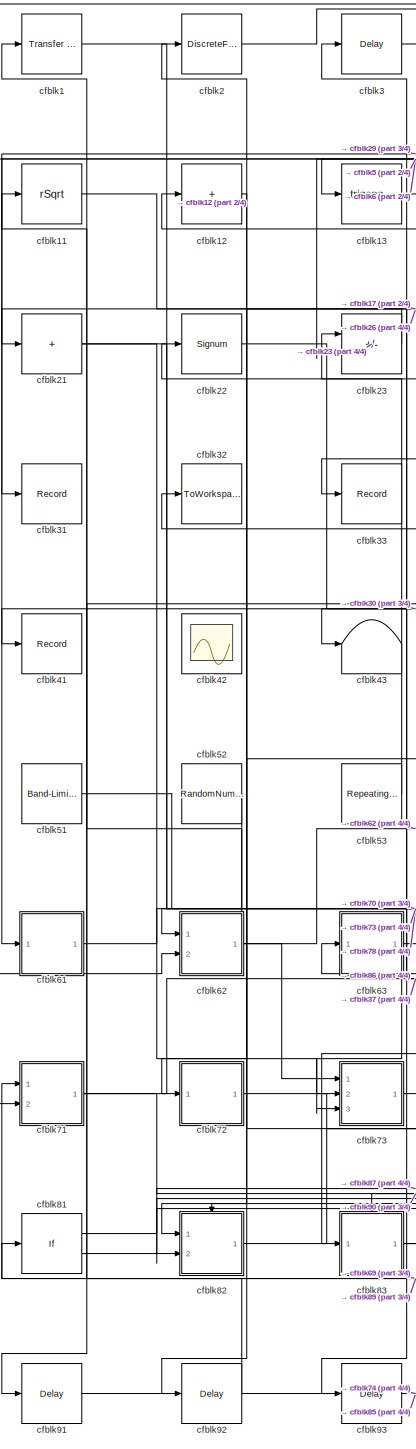
[diagram: root canvas - part 1/4, left side, full height]
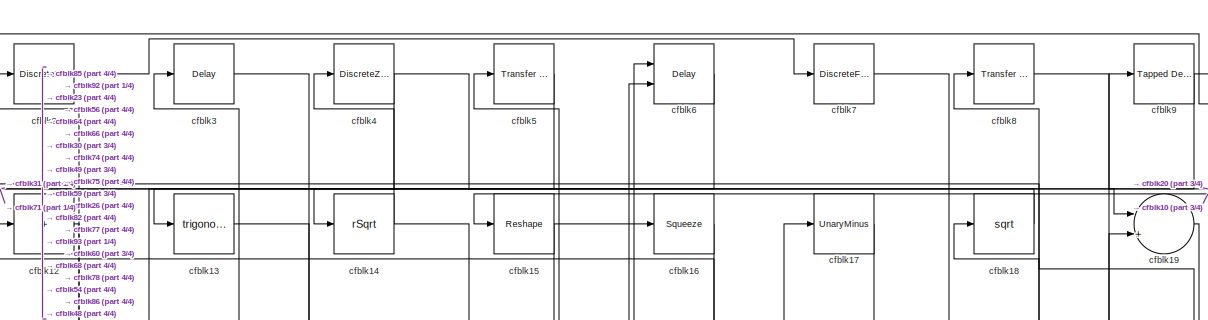
[diagram: root canvas - part 2/4, full width, top band]
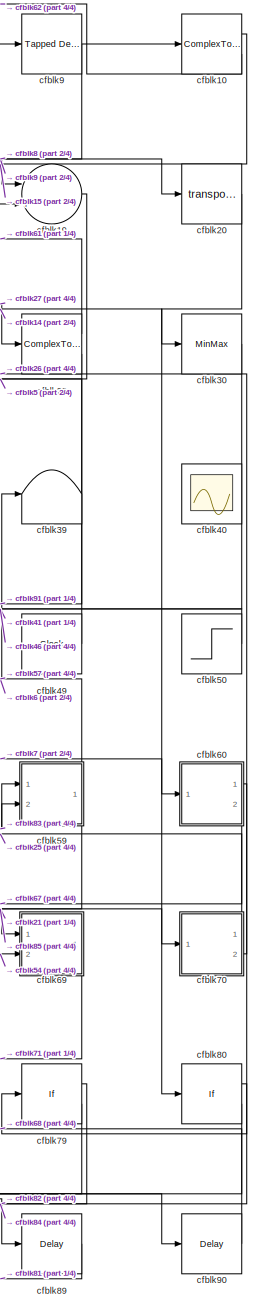
[diagram: root canvas - part 3/4, right side, full height]
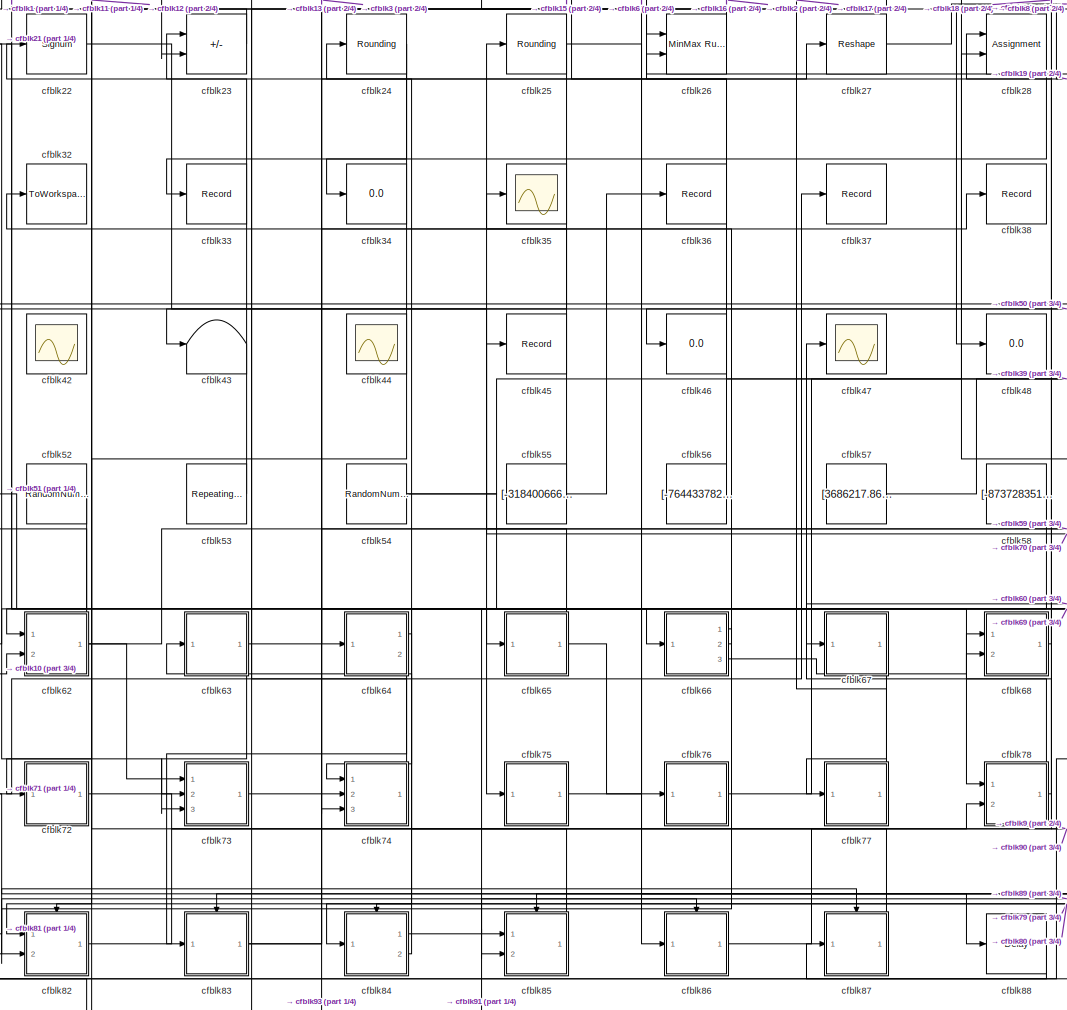
[diagram: root canvas - part 4/4, central region]
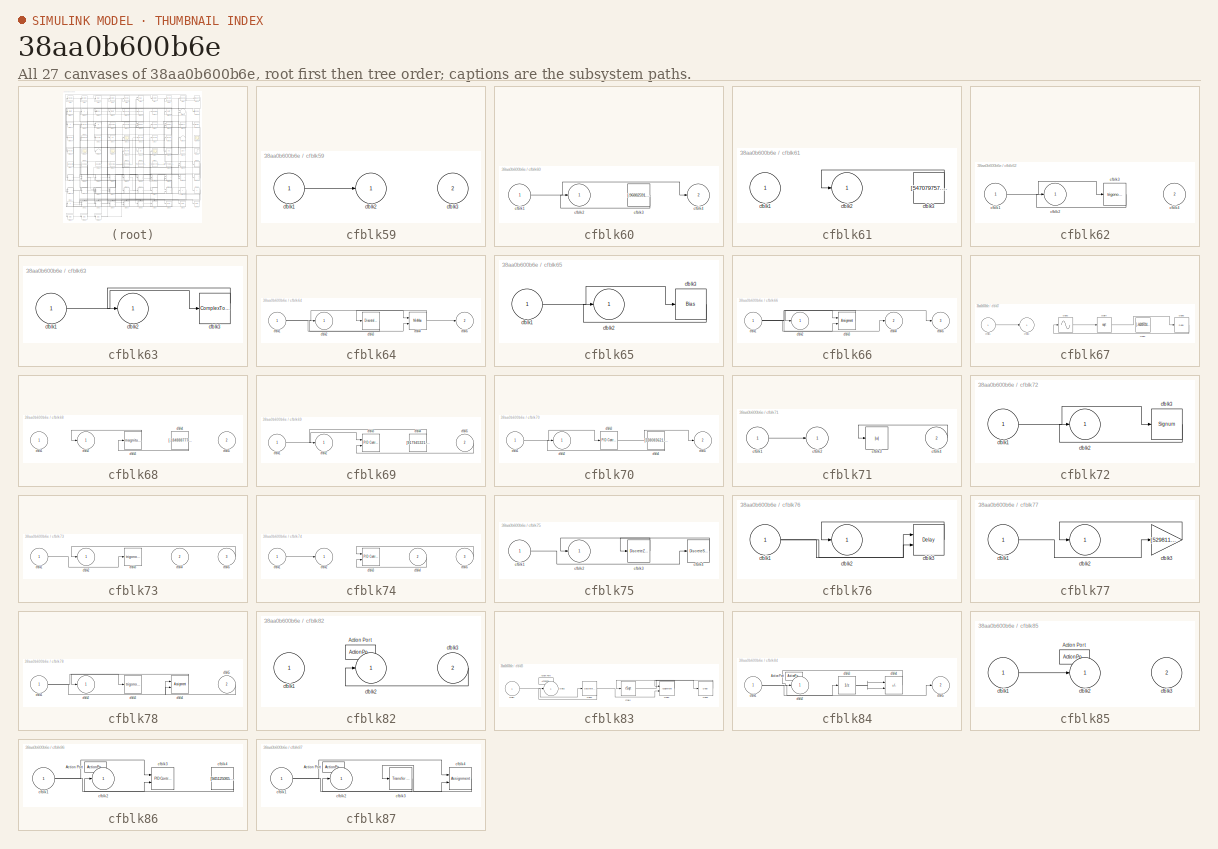
[diagram: thumbnail index - all 27 canvases of the model, root first then tree order]
MODEL slx_38aa0b600b6e
KIND model
CONFIG AbsTol = auto
CONFIG EnableMultiTasking = off
CONFIG FixedStep = auto
CONFIG MaxStep = auto
CONFIG MinStep = auto
CONFIG RelTol = 1e-3
CONFIG SampleTimeConstraint = Unconstrained
CONFIG SolverName = VariableStepAuto
CONFIG StartTime = 0.0
CONFIG StopTime = 10.0
BLOCK [Reference] cfblk1  REF=simulink/Discrete/Transfer Fcn
First Order
  Ports = [1, 1]
  SourceBlock = simulink/Discrete/Transfer Fcn\nFirst Order
  SourceProductBaseCode = SL
  SourceType = First Order Transfer Fcn
BLOCK [ComplexToRealImag] cfblk10
  Ports = [1, 2]
BLOCK [Sqrt] cfblk11
  AlgorithmType = Newton-Raphson
  Operator = rSqrt
BLOCK [Sum] cfblk12
  IconShape = rectangular
  Inputs = +
  Ports = [1, 1]
BLOCK [Trigonometry] cfblk13
  Ports = [1, 1]
BLOCK [Sqrt] cfblk14
  AlgorithmType = Newton-Raphson
  Operator = rSqrt
BLOCK [Reshape] cfblk15
  Ports = [1, 1]
BLOCK [Squeeze] cfblk16
BLOCK [UnaryMinus] cfblk17
BLOCK [Sqrt] cfblk18
BLOCK [Sum] cfblk19
  Inputs = |++
  Ports = [2, 1]
BLOCK [DiscreteFilter] cfblk2
  InputPortMap = u0
  Ports = [1, 1]
  SampleTime = 1
BLOCK [Math] cfblk20
  Operator = transpose
  Ports = [1, 1]
BLOCK [Sum] cfblk21
  IconShape = rectangular
  Inputs = +
  Ports = [1, 1]
BLOCK [Signum] cfblk22
BLOCK [Sum] cfblk23
  IconShape = rectangular
  Inputs = +-
  Ports = [2, 1]
BLOCK [Rounding] cfblk24
BLOCK [Rounding] cfblk25
BLOCK [Reference] cfblk26  REF=simulink/Math
Operations/MinMax
Running
Resettable
  Ports = [2, 1]
  SourceBlock = simulink/Math\nOperations/MinMax\nRunning\nResettable
  SourceProductBaseCode = SL
  SourceType = MinMax Running Resettable
BLOCK [Reshape] cfblk27
  Ports = [1, 1]
BLOCK [Assignment] cfblk28
  DiagnosticForDimensions = Warning
  IndexOptions = Index vector (dialog)
  Indices = 1
  OutputSizes = 1
  Ports = [2, 1]
BLOCK [ComplexToMagnitudeAngle] cfblk29
  Ports = [1, 2]
BLOCK [Delay] cfblk3
  InputPortMap = u0
  Ports = [1, 1]
  SampleTime = 1
BLOCK [MinMax] cfblk30
  Ports = [1, 1]
BLOCK [Record] cfblk31
  FileSettingsInternal = {"entries":[{"content":{"excelSettings":{"content":{},"type":"Streamout.ExcelSettings"}},"type":"Streamout.FileSettingStorage","uuid":"2c4c404d-a9d8-4ecb-ac43-eb07e88231c0"}],"packageUris":["http://schema.mathworks.com/mf0/streamout_blocks/R2020a"],"version":"1.0"}
  Ports = [1]
  SignalsInternal = {"entries":[{"content":{"signals":[{"content":{"blockPath":["sampleModel146/cfblk31"],"channel":[],"dimensions":[1],"domain":"sampleModel146/cfblk31","lineColor":"#139fff","plots":[1],"port":1,"sid":[""],"signalID":5266,"signalName":"cfblk6"},"type":"RecordBlkView.Signal","uuid":"d0bc3e79-35fc-4836-94ff-ebfbf25c3b13"}]},"type":"RecordBlkView.InputSignals","uuid":"1b88b178-e015-42b9-92ef-ac75b53b49...<+96ch>
  VisualizationBindings = {"sparklinesplugin":{"info":[{"bindingParametersList":[],"subplotID":1}]}}
BLOCK [ToWorkspace] cfblk32
  FixptAsFi = on
  MaxDataPoints = inf
  Ports = [1]
  SampleTime = -1
  SaveFormat = Timeseries
  VariableName = orayvde
BLOCK [Record] cfblk33
  FileSettingsInternal = {"entries":[{"content":{"excelSettings":{"content":{},"type":"Streamout.ExcelSettings"}},"type":"Streamout.FileSettingStorage","uuid":"65027242-5e25-4199-be77-d1365caa59eb"}],"packageUris":["http://schema.mathworks.com/mf0/streamout_blocks/R2020a"],"version":"1.0"}
  Ports = [1]
  SignalsInternal = {"entries":[{"content":{"signals":[{"content":{"blockPath":["sampleModel146/cfblk33"],"channel":[],"dimensions":[1],"domain":"sampleModel146/cfblk33","lineColor":"#ff6929","plots":[1],"port":1,"sid":[""],"signalID":5270,"signalName":"cfblk28"},"type":"RecordBlkView.Signal","uuid":"aadf2ae7-2411-4fd9-b32c-018aacf0e8a5"}]},"type":"RecordBlkView.InputSignals","uuid":"b211df41-9a1a-42a6-a715-a49f11091...<+97ch>
  VisualizationBindings = {"sparklinesplugin":{"info":[{"bindingParametersList":[],"subplotID":1}]}}
BLOCK [Display] cfblk34
  Decimation = 1
  Ports = [1]
BLOCK [Scope] cfblk35
  Floating = off
  NumInputPorts = 1
  Ports = [1]
BLOCK [Record] cfblk36
  FileSettingsInternal = {"entries":[{"content":{"excelSettings":{"content":{},"type":"Streamout.ExcelSettings"}},"type":"Streamout.FileSettingStorage","uuid":"b95e6de0-f22c-4258-afa3-2d8504a087c8"}],"packageUris":["http://schema.mathworks.com/mf0/streamout_blocks/R2020a"],"version":"1.0"}
  Ports = [1]
  SignalsInternal = {"entries":[{"content":{"signals":[{"content":{"blockPath":["sampleModel146/cfblk36"],"channel":[],"dimensions":[1],"domain":"sampleModel146/cfblk36","lineColor":"#22b573","plots":[1],"port":1,"sid":[""],"signalID":5290,"signalName":"cfblk55"},"type":"RecordBlkView.Signal","uuid":"630c3307-0b12-4d42-afc6-4e4cd5541c27"}]},"type":"RecordBlkView.InputSignals","uuid":"f5b0acc1-aa89-423a-8880-baa8e1798...<+97ch>
  VisualizationBindings = {"sparklinesplugin":{"info":[{"bindingParametersList":[],"subplotID":1}]}}
BLOCK [Record] cfblk37
  FileSettingsInternal = {"entries":[{"content":{"excelSettings":{"content":{},"type":"Streamout.ExcelSettings"}},"type":"Streamout.FileSettingStorage","uuid":"0c3041c5-4aae-4561-a3e8-a0a0da4f8121"}],"packageUris":["http://schema.mathworks.com/mf0/streamout_blocks/R2020a"],"version":"1.0"}
  Ports = [1]
  SignalsInternal = {"entries":[{"content":{"signals":[{"content":{"blockPath":["sampleModel146/cfblk37"],"channel":[],"dimensions":[1],"domain":"sampleModel146/cfblk37","lineColor":"#b746ff","plots":[1],"port":1,"sid":[""],"signalID":5274,"signalName":"cfblk71"},"type":"RecordBlkView.Signal","uuid":"452ff87b-2b57-4707-8e3e-520f57da208a"}]},"type":"RecordBlkView.InputSignals","uuid":"91810d5e-a00a-4bd2-b3b8-7506dd3a3...<+97ch>
  VisualizationBindings = {"sparklinesplugin":{"info":[{"bindingParametersList":[],"subplotID":1}]}}
BLOCK [Record] cfblk38
  FileSettingsInternal = {"entries":[{"content":{"excelSettings":{"content":{},"type":"Streamout.ExcelSettings"}},"type":"Streamout.FileSettingStorage","uuid":"1370b659-9fe1-44bb-a8e0-eb1c61a1ec34"}],"packageUris":["http://schema.mathworks.com/mf0/streamout_blocks/R2020a"],"version":"1.0"}
  Ports = [1]
  SignalsInternal = {"entries":[{"content":{"signals":[{"content":{"blockPath":["sampleModel146/cfblk38"],"channel":[],"dimensions":[1],"domain":"sampleModel146/cfblk38","lineColor":"#64d413","plots":[1],"port":1,"sid":[""],"signalID":5278,"signalName":"cfblk83"},"type":"RecordBlkView.Signal","uuid":"71d7e047-3901-47e8-824b-454d5ede9138"}]},"type":"RecordBlkView.InputSignals","uuid":"30ff83fd-6f7f-4710-9669-c62cc7ca5...<+97ch>
  VisualizationBindings = {"sparklinesplugin":{"info":[{"bindingParametersList":[],"subplotID":1}]}}
BLOCK [Terminator] cfblk39
BLOCK [DiscreteZeroPole] cfblk4
  Gain = 1
  Poles = [0 0.5]
BLOCK [Scope] cfblk40
  Floating = on
  NumInputPorts = 1
  Ports = []
BLOCK [Record] cfblk41
  FileSettingsInternal = {"entries":[{"content":{"excelSettings":{"content":{},"type":"Streamout.ExcelSettings"}},"type":"Streamout.FileSettingStorage","uuid":"e9d0085e-7b44-4280-904e-0d2ea41b6763"}],"packageUris":["http://schema.mathworks.com/mf0/streamout_blocks/R2020a"],"version":"1.0"}
  Ports = [1]
  SignalsInternal = {"entries":[{"content":{"signals":[{"content":{"blockPath":["sampleModel146/cfblk41"],"channel":[],"dimensions":[1],"domain":"sampleModel146/cfblk41","lineColor":"#ff13a6","plots":[1],"port":1,"sid":[""],"signalID":5282,"signalName":"cfblk30"},"type":"RecordBlkView.Signal","uuid":"31df9822-a114-4d34-9a51-10c9b00f2ee3"}]},"type":"RecordBlkView.InputSignals","uuid":"5b7c9c5f-bbea-4250-92c8-c644ac5b8...<+97ch>
  VisualizationBindings = {"sparklinesplugin":{"info":[{"bindingParametersList":[],"subplotID":1}]}}
BLOCK [Scope] cfblk42
  Floating = on
  NumInputPorts = 1
  Ports = []
BLOCK [Terminator] cfblk43
BLOCK [Scope] cfblk44
  Floating = on
  NumInputPorts = 1
  Ports = []
BLOCK [Record] cfblk45
  FileSettingsInternal = {"entries":[{"content":{"excelSettings":{"content":{},"type":"Streamout.ExcelSettings"}},"type":"Streamout.FileSettingStorage","uuid":"0bb6bd0b-88fb-4473-b7a6-0bbe2ad255e7"}],"packageUris":["http://schema.mathworks.com/mf0/streamout_blocks/R2020a"],"version":"1.0"}
  Ports = [1]
  SignalsInternal = {"entries":[{"content":{"signals":[{"content":{"blockPath":["sampleModel146/cfblk45"],"channel":[],"dimensions":[1],"domain":"sampleModel146/cfblk45","lineColor":"#fe330a","plots":[1],"port":1,"sid":[""],"signalID":5286,"signalName":"cfblk65"},"type":"RecordBlkView.Signal","uuid":"cd88cc68-3f2e-42c4-a163-fa1a7b8ab893"}]},"type":"RecordBlkView.InputSignals","uuid":"cd7a75ea-4808-439b-8258-22c9bf424...<+97ch>
  VisualizationBindings = {"sparklinesplugin":{"info":[{"bindingParametersList":[],"subplotID":1}]}}
BLOCK [Display] cfblk46
  Decimation = 1
  Ports = [1]
BLOCK [Scope] cfblk47
  Floating = off
  NumInputPorts = 1
  Ports = [1]
BLOCK [Display] cfblk48
  Decimation = 1
  Ports = [1]
BLOCK [Clock] cfblk49
BLOCK [Reference] cfblk5  REF=simulink/Discrete/Transfer Fcn
Real Zero
  Ports = [1, 1]
  SourceBlock = simulink/Discrete/Transfer Fcn\nReal Zero
  SourceProductBaseCode = SL
  SourceType = Transfer Fcn Real Zero
BLOCK [Step] cfblk50
  After = [798396220.249908]
  Before = [-849996061.137536]
  SampleTime = 0
  Time = [22.000000]
BLOCK [Reference] cfblk51  REF=simulink/Sources/Band-Limited
White Noise
  Ports = [0, 1]
  SourceBlock = simulink/Sources/Band-Limited\nWhite Noise
  SourceProductBaseCode = SL
  SourceType = Band-Limited White Noise.
BLOCK [RandomNumber] cfblk52
  Mean = [65950.681995]
  SampleTime = 0.1
  Seed = [824600453.000000]
  Variance = [77541.305235]
BLOCK [Reference] cfblk53  REF=simulink/Sources/Repeating
Sequence
  Ports = [0, 1]
  SourceBlock = simulink/Sources/Repeating\nSequence
  SourceProductBaseCode = SL
  SourceType = Repeating table
BLOCK [RandomNumber] cfblk54
  Mean = [34491.920561]
  SampleTime = 0.1
  Seed = [436632323.000000]
  Variance = [31983.581449]
BLOCK [Constant] cfblk55
  SampleTime = 1
  Value = [-318400666.602651]
BLOCK [Constant] cfblk56
  SampleTime = 1
  Value = [-764433782.790747]
BLOCK [Constant] cfblk57
  SampleTime = 1
  Value = [3686217.863998]
BLOCK [Constant] cfblk58
  SampleTime = 1
  Value = [-873728351.739211]
BLOCK [SubSystem] cfblk59
  Ports = [2, 1]
  RequestExecContextInheritance = off
BLOCK [Inport] cfblk59/cfblk1
BLOCK [Outport] cfblk59/cfblk2
BLOCK [Inport] cfblk59/cfblk3
  Port = 2
BLOCK [Delay] cfblk6
  DelayLengthSource = Input port
  InputPortMap = u0,p1
  Ports = [2, 1]
  SampleTime = 1
BLOCK [SubSystem] cfblk60
  Ports = [1, 2]
  RequestExecContextInheritance = off
BLOCK [Inport] cfblk60/cfblk1
BLOCK [Outport] cfblk60/cfblk2
BLOCK [Constant] cfblk60/cfblk3
  SampleTime = 1
  Value = [-96882591.848260]
BLOCK [Outport] cfblk60/cfblk4
  Port = 2
BLOCK [SubSystem] cfblk61
  Ports = [1, 1]
  RequestExecContextInheritance = off
BLOCK [Inport] cfblk61/cfblk1
BLOCK [Outport] cfblk61/cfblk2
BLOCK [Constant] cfblk61/cfblk3
  SampleTime = 1
  Value = [547079757.586182]
BLOCK [SubSystem] cfblk62
  Ports = [2, 1]
  RequestExecContextInheritance = off
BLOCK [Inport] cfblk62/cfblk1
BLOCK [Outport] cfblk62/cfblk2
BLOCK [Trigonometry] cfblk62/cfblk3
  Ports = [1, 1]
BLOCK [Inport] cfblk62/cfblk4
  Port = 2
BLOCK [SubSystem] cfblk63
  Ports = [1, 1]
  RequestExecContextInheritance = off
BLOCK [Inport] cfblk63/cfblk1
BLOCK [Outport] cfblk63/cfblk2
BLOCK [ComplexToRealImag] cfblk63/cfblk3
  Ports = [1, 2]
BLOCK [SubSystem] cfblk64
  Ports = [1, 2]
  RequestExecContextInheritance = off
BLOCK [Inport] cfblk64/cfblk1
BLOCK [Outport] cfblk64/cfblk2
BLOCK [DiscreteIntegrator] cfblk64/cfblk3
  ICPrevOutput = DiscIntNeverNeededParam
  ICPrevScaledInput = DiscIntNeverNeededParam
  InitialConditionSetting = Auto
  Ports = [1, 1]
BLOCK [MinMax] cfblk64/cfblk4
  Inputs = 2
  Ports = [2, 1]
BLOCK [Outport] cfblk64/cfblk5
  Port = 2
BLOCK [SubSystem] cfblk65
  Ports = [1, 1]
  RequestExecContextInheritance = off
BLOCK [Inport] cfblk65/cfblk1
BLOCK [Outport] cfblk65/cfblk2
BLOCK [Bias] cfblk65/cfblk3
  Bias = [-658670324.478273]
  SaturateOnIntegerOverflow = off
BLOCK [SubSystem] cfblk66
  Ports = [1, 3]
  RequestExecContextInheritance = off
BLOCK [Inport] cfblk66/cfblk1
BLOCK [Outport] cfblk66/cfblk2
BLOCK [Assignment] cfblk66/cfblk3
  DiagnosticForDimensions = Warning
  IndexOptions = Index vector (dialog)
  Indices = 1
  OutputSizes = 1
  Ports = [2, 1]
BLOCK [Outport] cfblk66/cfblk4
  Port = 2
BLOCK [Outport] cfblk66/cfblk5
  Port = 3
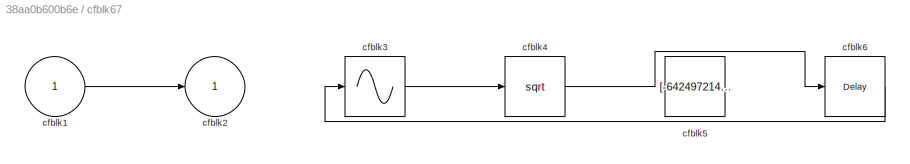
BLOCK [SubSystem] cfblk67
  Ports = [1, 1]
  RequestExecContextInheritance = off
BLOCK [Inport] cfblk67/cfblk1
BLOCK [Outport] cfblk67/cfblk2
BLOCK [Sin] cfblk67/cfblk3
  Ports = [1, 1]
  SampleTime = 0
  TimeSource = Use external signal
BLOCK [Sqrt] cfblk67/cfblk4
BLOCK [Constant] cfblk67/cfblk5
  SampleTime = 1
  Value = [-642497214.972523]
BLOCK [Delay] cfblk67/cfblk6
  InputPortMap = u0
  Ports = [1, 1]
  SampleTime = 1
BLOCK [SubSystem] cfblk68
  Ports = [2, 1]
  RequestExecContextInheritance = off
BLOCK [Inport] cfblk68/cfblk1
BLOCK [Outport] cfblk68/cfblk2
BLOCK [Math] cfblk68/cfblk3
  Operator = magnitude^2
  Ports = [1, 1]
BLOCK [Constant] cfblk68/cfblk4
  SampleTime = 1
  Value = [-184888777.157534]
BLOCK [Inport] cfblk68/cfblk5
  Port = 2
BLOCK [SubSystem] cfblk69
  Ports = [2, 1]
  RequestExecContextInheritance = off
BLOCK [Inport] cfblk69/cfblk1
BLOCK [Outport] cfblk69/cfblk2
BLOCK [Reference] cfblk69/cfblk3  REF=slpidlib/PID Controller (2DOF)
  Ports = [2, 1]
  SourceBlock = slpidlib/PID Controller (2DOF)
  SourceProductBaseCode = SL
  SourceType = PID 2dof
BLOCK [Constant] cfblk69/cfblk4
  SampleTime = 1
  Value = [917945321.597858]
BLOCK [Inport] cfblk69/cfblk5
  Port = 2
BLOCK [DiscreteFilter] cfblk7
  InputPortMap = u0
  Ports = [1, 1]
  SampleTime = 1
BLOCK [SubSystem] cfblk70
  Ports = [1, 2]
  RequestExecContextInheritance = off
BLOCK [Inport] cfblk70/cfblk1
BLOCK [Outport] cfblk70/cfblk2
BLOCK [Reference] cfblk70/cfblk3  REF=slpidlib/PID Controller
  Ports = [1, 1]
  SourceBlock = slpidlib/PID Controller
  SourceProductBaseCode = SL
  SourceType = PID 1dof
BLOCK [Constant] cfblk70/cfblk4
  SampleTime = 1
  Value = [338083621.591350]
BLOCK [Outport] cfblk70/cfblk5
  Port = 2
BLOCK [SubSystem] cfblk71
  Ports = [2, 1]
  RequestExecContextInheritance = off
BLOCK [Inport] cfblk71/cfblk1
BLOCK [Outport] cfblk71/cfblk2
BLOCK [Abs] cfblk71/cfblk3
  SaturateOnIntegerOverflow = off
BLOCK [Inport] cfblk71/cfblk4
  Port = 2
BLOCK [SubSystem] cfblk72
  Ports = [1, 1]
  RequestExecContextInheritance = off
BLOCK [Inport] cfblk72/cfblk1
BLOCK [Outport] cfblk72/cfblk2
BLOCK [Signum] cfblk72/cfblk3
BLOCK [SubSystem] cfblk73
  Ports = [3, 1]
  RequestExecContextInheritance = off
BLOCK [Inport] cfblk73/cfblk1
BLOCK [Outport] cfblk73/cfblk2
BLOCK [Trigonometry] cfblk73/cfblk3
  Ports = [1, 1]
BLOCK [Inport] cfblk73/cfblk4
  Port = 2
BLOCK [Inport] cfblk73/cfblk5
  Port = 3
BLOCK [SubSystem] cfblk74
  Ports = [3, 1]
  RequestExecContextInheritance = off
BLOCK [Inport] cfblk74/cfblk1
BLOCK [Outport] cfblk74/cfblk2
BLOCK [Reference] cfblk74/cfblk3  REF=slpidlib/PID Controller (2DOF)
  Ports = [2, 1]
  SourceBlock = slpidlib/PID Controller (2DOF)
  SourceProductBaseCode = SL
  SourceType = PID 2dof
BLOCK [Inport] cfblk74/cfblk4
  Port = 2
BLOCK [Inport] cfblk74/cfblk5
  Port = 3
BLOCK [SubSystem] cfblk75
  Ports = [1, 1]
  RequestExecContextInheritance = off
BLOCK [Inport] cfblk75/cfblk1
BLOCK [Outport] cfblk75/cfblk2
BLOCK [DiscreteZeroPole] cfblk75/cfblk3
  Gain = 1
  Poles = [0 0.5]
BLOCK [DiscreteStateSpace] cfblk75/cfblk4
BLOCK [SubSystem] cfblk76
  Ports = [1, 1]
  RequestExecContextInheritance = off
BLOCK [Inport] cfblk76/cfblk1
BLOCK [Outport] cfblk76/cfblk2
BLOCK [Delay] cfblk76/cfblk3
  InputPortMap = u0,e6
  Ports = [2, 1]
  SampleTime = 1
  ShowEnablePort = on
BLOCK [SubSystem] cfblk77
  Ports = [1, 1]
  RequestExecContextInheritance = off
BLOCK [Inport] cfblk77/cfblk1
BLOCK [Outport] cfblk77/cfblk2
BLOCK [Gain] cfblk77/cfblk3
  Gain = [529811670.708205]
BLOCK [SubSystem] cfblk78
  Ports = [2, 1]
  RequestExecContextInheritance = off
BLOCK [Inport] cfblk78/cfblk1
BLOCK [Outport] cfblk78/cfblk2
BLOCK [Trigonometry] cfblk78/cfblk3
  Ports = [1, 1]
BLOCK [Assignment] cfblk78/cfblk4
  DiagnosticForDimensions = Warning
  IndexOptions = Index vector (dialog)
  Indices = 1
  OutputSizes = 1
  Ports = [2, 1]
BLOCK [Inport] cfblk78/cfblk5
  Port = 2
BLOCK [If] cfblk79
  IfExpression = u1 >= 0
  Ports = [1, 2]
  SampleTime = 1
BLOCK [Reference] cfblk8  REF=simulink/Discrete/Transfer Fcn
First Order
  Ports = [1, 1]
  SourceBlock = simulink/Discrete/Transfer Fcn\nFirst Order
  SourceProductBaseCode = SL
  SourceType = First Order Transfer Fcn
BLOCK [If] cfblk80
  IfExpression = u1 >= 0
  Ports = [1, 2]
  SampleTime = 1
BLOCK [If] cfblk81
  IfExpression = u1 >= 0
  Ports = [1, 2]
  SampleTime = 1
BLOCK [SubSystem] cfblk82
  Ports = [2, 1, 0, 0, 0, 0, 0, 1]
  RequestExecContextInheritance = off
  TreatAsAtomicUnit = on
BLOCK [ActionPort] cfblk82/Action Port
  ActionPortLabel = if(u1 >= 0)
BLOCK [Inport] cfblk82/cfblk1
BLOCK [Outport] cfblk82/cfblk2
BLOCK [Inport] cfblk82/cfblk3
  Port = 2
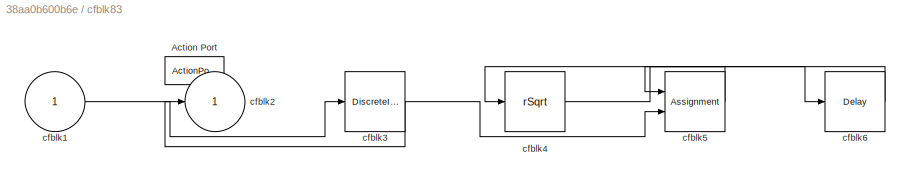
BLOCK [SubSystem] cfblk83
  Ports = [1, 1, 0, 0, 0, 0, 0, 1]
  RequestExecContextInheritance = off
  TreatAsAtomicUnit = on
BLOCK [ActionPort] cfblk83/Action Port
  ActionPortLabel = else
BLOCK [Inport] cfblk83/cfblk1
BLOCK [Outport] cfblk83/cfblk2
BLOCK [DiscreteIntegrator] cfblk83/cfblk3
  ICPrevOutput = DiscIntNeverNeededParam
  ICPrevScaledInput = DiscIntNeverNeededParam
  InitialConditionSetting = Auto
  Ports = [1, 1]
  SampleTime = -1
BLOCK [Sqrt] cfblk83/cfblk4
  AlgorithmType = Newton-Raphson
  Operator = rSqrt
BLOCK [Assignment] cfblk83/cfblk5
  DiagnosticForDimensions = Warning
  IndexOptions = Index vector (dialog)
  Indices = 1
  OutputSizes = 1
  Ports = [2, 1]
BLOCK [Delay] cfblk83/cfblk6
  InputPortMap = u0
  Ports = [1, 1]
BLOCK [SubSystem] cfblk84
  Ports = [1, 2, 0, 0, 0, 0, 0, 1]
  RequestExecContextInheritance = off
  TreatAsAtomicUnit = on
BLOCK [ActionPort] cfblk84/Action Port
  ActionPortLabel = if(u1 >= 0)
BLOCK [Inport] cfblk84/cfblk1
BLOCK [Outport] cfblk84/cfblk2
BLOCK [UnitDelay] cfblk84/cfblk3
  HasFrameUpgradeWarning = on
  SampleTime = -1
BLOCK [Sum] cfblk84/cfblk4
  IconShape = rectangular
  Inputs = +-
  Ports = [2, 1]
BLOCK [Outport] cfblk84/cfblk5
  Port = 2
BLOCK [SubSystem] cfblk85
  Ports = [2, 1, 0, 0, 0, 0, 0, 1]
  RequestExecContextInheritance = off
  TreatAsAtomicUnit = on
BLOCK [ActionPort] cfblk85/Action Port
  ActionPortLabel = else
BLOCK [Inport] cfblk85/cfblk1
BLOCK [Outport] cfblk85/cfblk2
BLOCK [Inport] cfblk85/cfblk3
  Port = 2
BLOCK [SubSystem] cfblk86
  Ports = [1, 1, 0, 0, 0, 0, 0, 1]
  RequestExecContextInheritance = off
  TreatAsAtomicUnit = on
BLOCK [ActionPort] cfblk86/Action Port
  ActionPortLabel = if(u1 >= 0)
BLOCK [Inport] cfblk86/cfblk1
BLOCK [Outport] cfblk86/cfblk2
BLOCK [Reference] cfblk86/cfblk3  REF=slpidlib/PID Controller (2DOF)
  Ports = [2, 1]
  SourceBlock = slpidlib/PID Controller (2DOF)
  SourceProductBaseCode = SL
  SourceType = PID 2dof
BLOCK [Constant] cfblk86/cfblk4
  SampleTime = 1
  Value = [945125065.003856]
BLOCK [SubSystem] cfblk87
  Ports = [1, 1, 0, 0, 0, 0, 0, 1]
  RequestExecContextInheritance = off
  TreatAsAtomicUnit = on
BLOCK [ActionPort] cfblk87/Action Port
  ActionPortLabel = else
BLOCK [Inport] cfblk87/cfblk1
BLOCK [Outport] cfblk87/cfblk2
BLOCK [Reference] cfblk87/cfblk3  REF=simulink/Discrete/Transfer Fcn
Lead or Lag
  Ports = [1, 1]
  SourceBlock = simulink/Discrete/Transfer Fcn\nLead or Lag
  SourceProductBaseCode = SL
  SourceType = Lead or Lag Compensator
BLOCK [Assignment] cfblk87/cfblk4
  DiagnosticForDimensions = Warning
  IndexOptions = Index vector (dialog)
  Indices = 1
  OutputSizes = 1
  Ports = [2, 1]
BLOCK [Delay] cfblk88
  InputPortMap = u0
  Ports = [1, 1]
  SampleTime = 1
BLOCK [Delay] cfblk89
  InputPortMap = u0
  Ports = [1, 1]
  SampleTime = 1
BLOCK [Reference] cfblk9  REF=simulink/Discrete/Tapped Delay
  Ports = [1, 1]
  SourceBlock = simulink/Discrete/Tapped Delay
  SourceProductBaseCode = SL
  SourceType = Tapped Delay Line
BLOCK [Delay] cfblk90
  InputPortMap = u0
  Ports = [1, 1]
  SampleTime = 1
BLOCK [Delay] cfblk91
  InputPortMap = u0
  Ports = [1, 1]
  SampleTime = 1
BLOCK [Delay] cfblk92
  InputPortMap = u0
  Ports = [1, 1]
  SampleTime = 1
BLOCK [Delay] cfblk93
  InputPortMap = u0
  Ports = [1, 1]
  SampleTime = 1
LINE cfblk10:1 -> cfblk15:1
LINE cfblk10:2 -> cfblk62:2
LINE cfblk11:1 -> cfblk26:1
LINE cfblk12:1 -> cfblk92:1
LINE cfblk13:1 -> cfblk66:1
NET cfblk14:1 -> cfblk30:1, cfblk4:1
NET cfblk15:1 -> cfblk16:1, cfblk74:3
LINE cfblk16:1 -> cfblk82:1
LINE cfblk17:1 -> cfblk93:1
LINE cfblk18:1 -> cfblk14:1
LINE cfblk19:1 -> cfblk48:1
LINE cfblk1:1 -> cfblk86:1
LINE cfblk20:1 -> cfblk80:1
NET cfblk21:1 -> cfblk70:1, cfblk73:3
LINE cfblk22:1 -> cfblk75:1
LINE cfblk23:1 -> cfblk21:1
NET cfblk24:1 -> cfblk34:1, cfblk72:1
NET cfblk25:1 -> cfblk43:1, cfblk88:1
LINE cfblk26:1 -> cfblk2:1
LINE cfblk27:1 -> cfblk29:1
LINE cfblk28:1 -> cfblk33:1
LINE cfblk29:1 -> cfblk61:1
LINE cfblk29:2 -> cfblk91:1
LINE cfblk2:1 -> cfblk7:1
LINE cfblk30:1 -> cfblk41:1
LINE cfblk3:1 -> cfblk64:1
LINE cfblk49:1 -> cfblk5:1
NET cfblk4:1 -> cfblk13:1, cfblk19:1
LINE cfblk50:1 -> cfblk46:1
LINE cfblk51:1 -> cfblk78:1
LINE cfblk52:1 -> cfblk62:1
LINE cfblk53:1 -> cfblk22:1
NET cfblk54:1 -> cfblk19:2, cfblk69:2
NET cfblk55:1 -> cfblk35:1, cfblk36:1
LINE cfblk56:1 -> cfblk3:1
LINE cfblk57:1 -> cfblk39:1
LINE cfblk58:1 -> cfblk84:1
LINE cfblk59/cfblk1:1 -> cfblk59/cfblk2:1
NET cfblk59:1 -> cfblk6:1, cfblk85:2
LINE cfblk5:1 -> cfblk71:2
LINE cfblk60/cfblk1:1 -> cfblk60/cfblk4:1
LINE cfblk60/cfblk3:1 -> cfblk60/cfblk2:1
LINE cfblk60:1 -> cfblk79:1
LINE cfblk60:2 -> cfblk67:1
LINE cfblk61/cfblk3:1 -> cfblk61/cfblk2:1
LINE cfblk61:1 -> cfblk69:1
LINE cfblk62/cfblk1:1 -> cfblk62/cfblk3:1
LINE cfblk62/cfblk3:1 -> cfblk62/cfblk2:1
NET cfblk62:1 -> cfblk11:1, cfblk59:2, cfblk73:1
LINE cfblk63/cfblk1:1 -> cfblk63/cfblk3:1
LINE cfblk63/cfblk3:1 -> cfblk63/cfblk2:1
NET cfblk63:1 -> cfblk65:1, cfblk73:2
NET cfblk64/cfblk1:1 -> cfblk64/cfblk4:1, cfblk64/cfblk4:2
LINE cfblk64/cfblk3:1 -> cfblk64/cfblk2:1
NET cfblk64/cfblk4:1 -> cfblk64/cfblk3:1, cfblk64/cfblk5:1
LINE cfblk64:1 -> cfblk74:1
LINE cfblk64:2 -> cfblk83:1
LINE cfblk65/cfblk1:1 -> cfblk65/cfblk3:1
LINE cfblk65/cfblk3:1 -> cfblk65/cfblk2:1
NET cfblk65:1 -> cfblk45:1, cfblk76:1
NET cfblk66/cfblk1:1 -> cfblk66/cfblk3:1, cfblk66/cfblk3:2, cfblk66/cfblk4:1, cfblk66/cfblk5:1
LINE cfblk66/cfblk3:1 -> cfblk66/cfblk2:1
LINE cfblk66:1 -> cfblk82:2
LINE cfblk66:2 -> cfblk32:1
LINE cfblk66:3 -> cfblk68:1
LINE cfblk67/cfblk1:1 -> cfblk67/cfblk2:1
LINE cfblk67/cfblk3:1 -> cfblk67/cfblk4:1
LINE cfblk67/cfblk4:1 -> cfblk67/cfblk6:1
LINE cfblk67/cfblk6:1 -> cfblk67/cfblk3:1
LINE cfblk67:1 -> cfblk77:1
LINE cfblk68/cfblk3:1 -> cfblk68/cfblk2:1
LINE cfblk68/cfblk4:1 -> cfblk68/cfblk3:1
LINE cfblk68:1 -> cfblk8:1
LINE cfblk69/cfblk1:1 -> cfblk69/cfblk3:1
LINE cfblk69/cfblk4:1 -> cfblk69/cfblk2:1
LINE cfblk69/cfblk5:1 -> cfblk69/cfblk3:2
LINE cfblk69:1 -> cfblk71:1
LINE cfblk6:1 -> cfblk31:1
LINE cfblk70/cfblk1:1 -> cfblk70/cfblk3:1
LINE cfblk70/cfblk3:1 -> cfblk70/cfblk5:1
LINE cfblk70/cfblk4:1 -> cfblk70/cfblk2:1
LINE cfblk70:1 -> cfblk25:1
LINE cfblk70:2 -> cfblk26:2
LINE cfblk71/cfblk1:1 -> cfblk71/cfblk2:1
LINE cfblk71/cfblk4:1 -> cfblk71/cfblk3:1
NET cfblk71:1 -> cfblk37:1, cfblk90:1
LINE cfblk72/cfblk1:1 -> cfblk72/cfblk3:1
LINE cfblk72/cfblk3:1 -> cfblk72/cfblk2:1
LINE cfblk72:1 -> cfblk78:2
LINE cfblk73/cfblk1:1 -> cfblk73/cfblk3:1
LINE cfblk73/cfblk5:1 -> cfblk73/cfblk2:1
LINE cfblk73:1 -> cfblk27:1
LINE cfblk74/cfblk1:1 -> cfblk74/cfblk2:1
LINE cfblk74/cfblk4:1 -> cfblk74/cfblk3:2
LINE cfblk74/cfblk5:1 -> cfblk74/cfblk3:1
LINE cfblk74:1 -> cfblk23:1
LINE cfblk75/cfblk1:1 -> cfblk75/cfblk4:1
LINE cfblk75/cfblk3:1 -> cfblk75/cfblk2:1
LINE cfblk75/cfblk4:1 -> cfblk75/cfblk3:1
LINE cfblk75:1 -> cfblk6:2
NET cfblk76/cfblk1:1 -> cfblk76/cfblk3:1, cfblk76/cfblk3:2
LINE cfblk76/cfblk3:1 -> cfblk76/cfblk2:1
LINE cfblk76:1 -> cfblk28:2
LINE cfblk77/cfblk1:1 -> cfblk77/cfblk3:1
LINE cfblk77/cfblk3:1 -> cfblk77/cfblk2:1
LINE cfblk77:1 -> cfblk17:1
NET cfblk78/cfblk1:1 -> cfblk78/cfblk3:1, cfblk78/cfblk4:1
LINE cfblk78/cfblk4:1 -> cfblk78/cfblk2:1
LINE cfblk78/cfblk5:1 -> cfblk78/cfblk4:2
NET cfblk78:1 -> cfblk18:1, cfblk47:1
LINE cfblk79:1 -> cfblk82:ifaction
LINE cfblk79:2 -> cfblk83:ifaction
LINE cfblk7:1 -> cfblk60:1
LINE cfblk80:1 -> cfblk84:ifaction
LINE cfblk80:2 -> cfblk85:ifaction
LINE cfblk81:1 -> cfblk86:ifaction
LINE cfblk81:2 -> cfblk87:ifaction
LINE cfblk82/cfblk3:1 -> cfblk82/cfblk2:1
LINE cfblk82:1 -> cfblk28:1
LINE cfblk83/cfblk1:1 -> cfblk83/cfblk3:1
NET cfblk83/cfblk3:1 -> cfblk83/cfblk2:1, cfblk83/cfblk5:2
LINE cfblk83/cfblk4:1 -> cfblk83/cfblk6:1
LINE cfblk83/cfblk5:1 -> cfblk83/cfblk4:1
LINE cfblk83/cfblk6:1 -> cfblk83/cfblk5:1
NET cfblk83:1 -> cfblk38:1, cfblk59:1
NET cfblk84/cfblk1:1 -> cfblk84/cfblk3:1, cfblk84/cfblk5:1
NET cfblk84/cfblk3:1 -> cfblk84/cfblk4:1, cfblk84/cfblk4:2
LINE cfblk84/cfblk4:1 -> cfblk84/cfblk2:1
LINE cfblk84:1 -> cfblk89:1
LINE cfblk84:2 -> cfblk63:1
LINE cfblk85/cfblk1:1 -> cfblk85/cfblk2:1
LINE cfblk85:1 -> cfblk12:1
NET cfblk86/cfblk1:1 -> cfblk86/cfblk3:1, cfblk86/cfblk3:2
LINE cfblk86/cfblk4:1 -> cfblk86/cfblk2:1
LINE cfblk86:1 -> cfblk9:1
NET cfblk87/cfblk1:1 -> cfblk87/cfblk4:1, cfblk87/cfblk4:2
LINE cfblk87/cfblk3:1 -> cfblk87/cfblk2:1
LINE cfblk87/cfblk4:1 -> cfblk87/cfblk3:1
LINE cfblk87:1 -> cfblk24:1
LINE cfblk88:1 -> cfblk87:1
LINE cfblk89:1 -> cfblk81:1
LINE cfblk8:1 -> cfblk20:1
LINE cfblk90:1 -> cfblk68:2
LINE cfblk91:1 -> cfblk85:1
LINE cfblk92:1 -> cfblk1:1
LINE cfblk93:1 -> cfblk74:2
NET cfblk9:1 -> cfblk10:1, cfblk23:2
note: NET lines group one-source signal fan-out (src -> all destinations, sorted); 1:1 wires keep LINE
